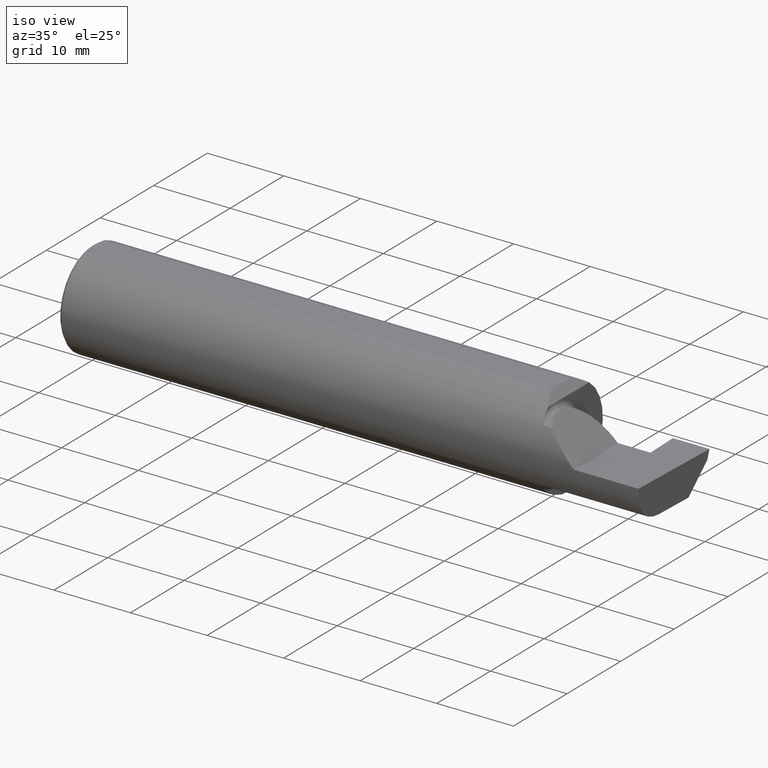
[diagram: clean part render]
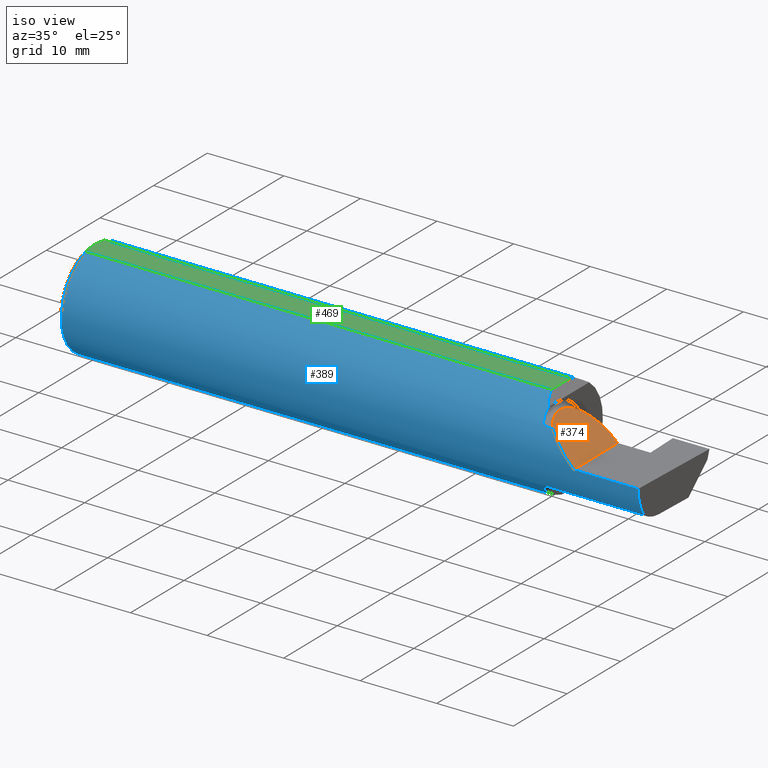
[diagram: same view with three faces highlighted in distinct colors, each labeled with its STEP entity id]
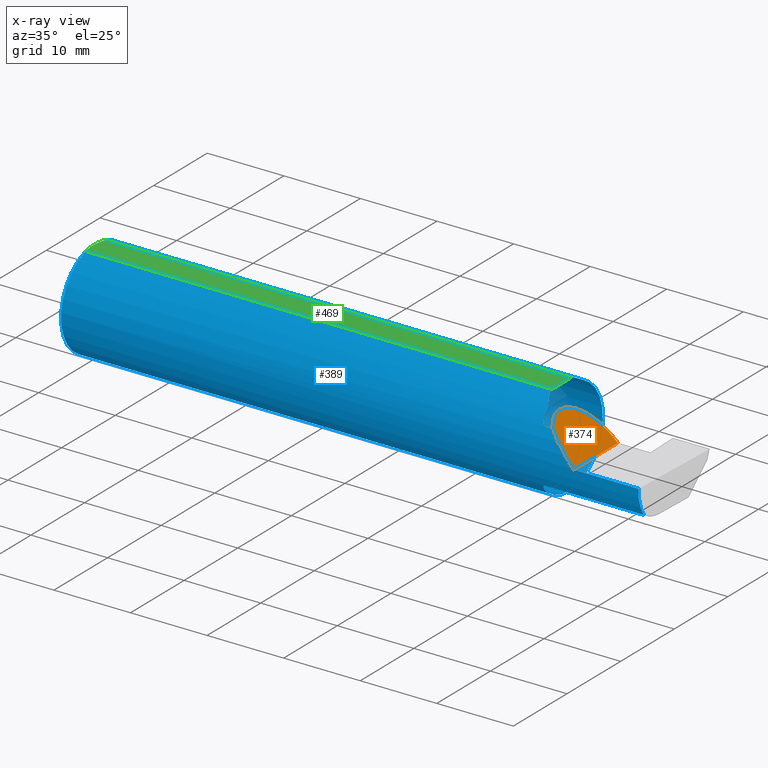
[diagram: x-ray of the same camera — body ghosted, the three highlighted faces saturated]
A machine part, iso view with three faces highlighted in distinct colors.
The next image is the same camera in x-ray (body ghosted, the three faces saturated) — at least one of them is partly hidden behind the body in this view.
Their STEP definitions:

[orange] entity #374 — the highlighted planar face has unit normal (-0.7071, 0, -0.7071).
#11 = EDGE_CURVE ( 'NONE', #62, #83, #819, .T. ) ;
#35 = AXIS2_PLACEMENT_3D ( 'NONE', #112, #661, #234 ) ;
#62 = VERTEX_POINT ( 'NONE', #579 ) ;
#83 = VERTEX_POINT ( 'NONE', #518 ) ;
#112 = CARTESIAN_POINT ( 'NONE',  ( 2.650000000000000355, -0.2500000000000000555, 4.286263797015727350E-17 ) ) ;
#160 = LINE ( 'NONE', #615, #725 ) ;
#176 = PLANE ( 'NONE',  #35 ) ;
#210 = CARTESIAN_POINT ( 'NONE',  ( 2.600434159100403875, -0.2498499999999999055, 0.04956584089959691769 ) ) ;
#216 = ORIENTED_EDGE ( 'NONE', *, *, #812, .T. ) ;
#234 = DIRECTION ( 'NONE',  ( -0.7071067811865454633, 0.000000000000000000, 0.7071067811865495711 ) ) ;
#251 =( BOUNDED_CURVE ( )  B_SPLINE_CURVE ( 3, ( #497, #626, #370, #816 ),
 .UNSPECIFIED., .F., .T. ) 
 B_SPLINE_CURVE_WITH_KNOTS ( ( 4, 4 ),
 ( 5.623622464215678463, 6.283185307179586232 ),
 .UNSPECIFIED. ) 
 CURVE ( )  GEOMETRIC_REPRESENTATION_ITEM ( )  RATIONAL_B_SPLINE_CURVE ( ( 1.000000000000000000, 0.9640754331822828371, 0.9640754331822828371, 1.000000000000000000 ) ) 
 REPRESENTATION_ITEM ( '' )  );
#271 = ORIENTED_EDGE ( 'NONE', *, *, #714, .F. ) ;
#276 = VERTEX_POINT ( 'NONE', #470 ) ;
#301 =( BOUNDED_CURVE ( )  B_SPLINE_CURVE ( 3, ( #780, #210, #327, #337 ),
 .UNSPECIFIED., .F., .F. ) 
 B_SPLINE_CURVE_WITH_KNOTS ( ( 4, 4 ),
 ( 4.712388980384689674, 5.298966915116346321 ),
 .UNSPECIFIED. ) 
 CURVE ( )  GEOMETRIC_REPRESENTATION_ITEM ( )  RATIONAL_B_SPLINE_CURVE ( ( 1.000000000000000000, 0.9715321379117538569, 0.9715321379117538569, 1.000000000000000000 ) ) 
 REPRESENTATION_ITEM ( '' )  );
#311 = EDGE_CURVE ( 'NONE', #716, #62, #251, .T. ) ;
#327 = CARTESIAN_POINT ( 'NONE',  ( 2.552984868485333347, -0.2355204011147992438, 0.09701513151466735485 ) ) ;
#337 = CARTESIAN_POINT ( 'NONE',  ( 2.511704467739034552, -0.2080850024789292485, 0.1382955322609664139 ) ) ;
#350 = EDGE_LOOP ( 'NONE', ( #544, #676, #271, #216 ) ) ;
#370 = CARTESIAN_POINT ( 'NONE',  ( 2.475000000000001421, -0.1400387324517231857, 0.1750000000000000167 ) ) ;
#374 = ADVANCED_FACE ( 'NONE', ( #557 ), #176, .F. ) ;
#459 = CARTESIAN_POINT ( 'NONE',  ( 2.650000000000000355, 0.07414999999999997982, 4.286263797015727350E-17 ) ) ;
#470 = CARTESIAN_POINT ( 'NONE',  ( 2.650000000000000355, -0.2498499999999999610, 4.286263797015727350E-17 ) ) ;
#497 = CARTESIAN_POINT ( 'NONE',  ( 2.511704467739034552, -0.2080850024789292485, 0.1382955322609664139 ) ) ;
#516 = CARTESIAN_POINT ( 'NONE',  ( 2.475000000000001421, 0.001662626584708371512, 0.1749999999999999889 ) ) ;
#518 = CARTESIAN_POINT ( 'NONE',  ( 2.650000000000000355, 0.07414999999999997982, 4.286263797015727350E-17 ) ) ;
#521 = CARTESIAN_POINT ( 'NONE',  ( 2.547487373415292744, 0.07414999999999996594, 0.1025126265847083745 ) ) ;
#529 = CARTESIAN_POINT ( 'NONE',  ( 2.511704467739034552, -0.2080850024789292485, 0.1382955322609664139 ) ) ;
#544 = ORIENTED_EDGE ( 'NONE', *, *, #11, .F. ) ;
#557 = FACE_OUTER_BOUND ( 'NONE', #350, .T. ) ;
#579 = CARTESIAN_POINT ( 'NONE',  ( 2.475000000000000977, -0.1008499999999999674, 0.1749999999999999889 ) ) ;
#615 = CARTESIAN_POINT ( 'NONE',  ( 2.650000000000000355, -0.2500000000000000555, 4.286263797015727350E-17 ) ) ;
#626 = CARTESIAN_POINT ( 'NONE',  ( 2.487690731615568307, -0.1771157075472510889, 0.1623092683844330197 ) ) ;
#650 = CARTESIAN_POINT ( 'NONE',  ( 2.475000000000000977, -0.1008499999999999674, 0.1749999999999999889 ) ) ;
#660 = DIRECTION ( 'NONE',  ( -0.000000000000000000, 1.000000000000000000, -0.000000000000000000 ) ) ;
#661 = DIRECTION ( 'NONE',  ( -0.7071067811865495711, 0.000000000000000000, -0.7071067811865454633 ) ) ;
#676 = ORIENTED_EDGE ( 'NONE', *, *, #311, .F. ) ;
#714 = EDGE_CURVE ( 'NONE', #276, #716, #301, .T. ) ;
#716 = VERTEX_POINT ( 'NONE', #529 ) ;
#725 = VECTOR ( 'NONE', #660, 39.37007874015748143 ) ;
#780 = CARTESIAN_POINT ( 'NONE',  ( 2.650000000000000355, -0.2498499999999999610, 4.286263797015727350E-17 ) ) ;
#812 = EDGE_CURVE ( 'NONE', #276, #83, #160, .T. ) ;
#816 = CARTESIAN_POINT ( 'NONE',  ( 2.475000000000000977, -0.1008499999999999674, 0.1749999999999999889 ) ) ;
#819 =( BOUNDED_CURVE ( )  B_SPLINE_CURVE ( 3, ( #650, #516, #521, #459 ),
 .UNSPECIFIED., .F., .F. ) 
 B_SPLINE_CURVE_WITH_KNOTS ( ( 4, 4 ),
 ( 0.000000000000000000, 1.570796326794896558 ),
 .UNSPECIFIED. ) 
 CURVE ( )  GEOMETRIC_REPRESENTATION_ITEM ( )  RATIONAL_B_SPLINE_CURVE ( ( 1.000000000000000000, 0.8047378541243649375, 0.8047378541243649375, 1.000000000000000000 ) ) 
 REPRESENTATION_ITEM ( '' )  );

[blue] entity #389 — the highlighted cylindrical surface (partial cylindrical patch) has radius 6.3462 mm, axis along (-1, -0, -0).
#1 = DIRECTION ( 'NONE',  ( -1.000000000000000000, -0.000000000000000000, -0.000000000000000000 ) ) ;
#3 = EDGE_CURVE ( 'NONE', #368, #42, #330, .T. ) ;
#5 = CARTESIAN_POINT ( 'NONE',  ( 2.981341028891338230, -0.2497592792593408828, -0.04986346618387151042 ) ) ;
#10 = CARTESIAN_POINT ( 'NONE',  ( 2.450000000000000178, -0.1616050818046604332, -0.1905487340154980169 ) ) ;
#13 = ORIENTED_EDGE ( 'NONE', *, *, #448, .F. ) ;
#28 = CARTESIAN_POINT ( 'NONE',  ( 2.410150000000002013, 0.06997856814768359246, 0.2398500000000000076 ) ) ;
#33 = CARTESIAN_POINT ( 'NONE',  ( 0.000000000000000000, 0.000000000000000000, 0.000000000000000000 ) ) ;
#41 = EDGE_CURVE ( 'NONE', #42, #209, #705, .T. ) ;
#42 = VERTEX_POINT ( 'NONE', #775 ) ;
#54 = CARTESIAN_POINT ( 'NONE',  ( 2.458176740666626170, -0.1972027065478075825, -0.1535263573771911971 ) ) ;
#56 = CARTESIAN_POINT ( 'NONE',  ( 2.468876997637614590, -0.2068363917296602017, 0.1401586554522226691 ) ) ;
#59 = CARTESIAN_POINT ( 'NONE',  ( 2.473318040126430528, -0.2080850024789293318, -0.1382955322609664139 ) ) ;
#60 = CARTESIAN_POINT ( 'NONE',  ( 2.450000000000000178, -0.1616050818046604332, 0.1905487340154980169 ) ) ;
#70 = CARTESIAN_POINT ( 'NONE',  ( 2.471700027347579542, -0.2077785947292770385, -0.1387580622202823077 ) ) ;
#73 = CARTESIAN_POINT ( 'NONE',  ( 2.977412177158956563, -0.2496672875357696664, -0.1999314649951114686 ) ) ;
#78 = VECTOR ( 'NONE', #678, 39.37007874015748143 ) ;
#88 = ORIENTED_EDGE ( 'NONE', *, *, #714, .T. ) ;
#95 = VERTEX_POINT ( 'NONE', #393 ) ;
#100 = ORIENTED_EDGE ( 'NONE', *, *, #543, .F. ) ;
#102 = CYLINDRICAL_SURFACE ( 'NONE', #261, 0.2498499999999999888 ) ;
#110 = B_SPLINE_CURVE_WITH_KNOTS ( 'NONE', 3,
 ( #60, #375, #122, #315, #623, #242, #180, #252, #435, #687, #56, #173, #429, #674 ),
 .UNSPECIFIED., .F., .F.,
 ( 4, 2, 2, 2, 2, 2, 4 ),
 ( 0.0003834465838148173595, 0.0008781406165086686789, 0.001372834649202519944, 0.001867528681896371209, 0.002114875698243302155, 0.002238549206416767193, 0.002362222714590232232 ),
 .UNSPECIFIED. ) ;
#116 = CIRCLE ( 'NONE', #765, 0.2498499999999999888 ) ;
#117 = CARTESIAN_POINT ( 'NONE',  ( 2.464302603425052141, -0.2041009206016216881, -0.1441313430770034543 ) ) ;
#122 = CARTESIAN_POINT ( 'NONE',  ( 2.450367168219774516, -0.1713400252854603567, 0.1819601557798505298 ) ) ;
#124 = CARTESIAN_POINT ( 'NONE',  ( 2.475000000000000089, -0.2080850024789291375, -0.1382955322609665805 ) ) ;
#126 = ORIENTED_EDGE ( 'NONE', *, *, #664, .F. ) ;
#132 = CARTESIAN_POINT ( 'NONE',  ( 0.000000000000000000, -0.06997856814768359246, 0.2398500000000000076 ) ) ;
#135 = EDGE_CURVE ( 'NONE', #209, #276, #547, .T. ) ;
#140 = DIRECTION ( 'NONE',  ( 0.000000000000000000, 0.000000000000000000, -1.000000000000000000 ) ) ;
#141 = AXIS2_PLACEMENT_3D ( 'NONE', #578, #260, #140 ) ;
#144 = CARTESIAN_POINT ( 'NONE',  ( 2.418565128400055997, 0.09882123526961361648, 0.2314348715999461070 ) ) ;
#147 = ORIENTED_EDGE ( 'NONE', *, *, #135, .T. ) ;
#164 = ORIENTED_EDGE ( 'NONE', *, *, #729, .F. ) ;
#168 = CARTESIAN_POINT ( 'NONE',  ( 2.982644377562602589, -0.2498499999999999610, 1.813681607540488003E-17 ) ) ;
#172 = DIRECTION ( 'NONE',  ( -1.000000000000000000, -0.000000000000000000, -0.000000000000000000 ) ) ;
#173 = CARTESIAN_POINT ( 'NONE',  ( 2.471718393013768278, -0.2077830475237243124, 0.1387513848711933728 ) ) ;
#174 = VERTEX_POINT ( 'NONE', #736 ) ;
#180 = CARTESIAN_POINT ( 'NONE',  ( 2.458182335268384922, -0.1972192205116133357, 0.1535061413537207597 ) ) ;
#185 = CARTESIAN_POINT ( 'NONE',  ( 2.468863362722769406, -0.2068301641248772305, -0.1401678546132358316 ) ) ;
#189 = CARTESIAN_POINT ( 'NONE',  ( 2.450000000000000178, -0.1616050818046604332, -0.1905487340154980169 ) ) ;
#191 = VERTEX_POINT ( 'NONE', #298 ) ;
#198 = VECTOR ( 'NONE', #771, 39.37007874015748143 ) ;
#209 = VERTEX_POINT ( 'NONE', #168 ) ;
#210 = CARTESIAN_POINT ( 'NONE',  ( 2.600434159100403875, -0.2498499999999999055, 0.04956584089959691769 ) ) ;
#220 = DIRECTION ( 'NONE',  ( -1.000000000000000000, -0.000000000000000000, -0.000000000000000000 ) ) ;
#223 = ORIENTED_EDGE ( 'NONE', *, *, #592, .F. ) ;
#240 = ORIENTED_EDGE ( 'NONE', *, *, #41, .T. ) ;
#242 = CARTESIAN_POINT ( 'NONE',  ( 2.456159563508733878, -0.1933019864360850659, 0.1584298865564828795 ) ) ;
#243 = ORIENTED_EDGE ( 'NONE', *, *, #487, .F. ) ;
#244 = CARTESIAN_POINT ( 'NONE',  ( 0.01499999999999999944, 0.000000000000000000, 0.000000000000000000 ) ) ;
#252 = CARTESIAN_POINT ( 'NONE',  ( 2.462616400345756240, -0.2024684335577105199, 0.1464246884265635318 ) ) ;
#255 = DIRECTION ( 'NONE',  ( 0.000000000000000000, 0.000000000000000000, 1.000000000000000000 ) ) ;
#260 = DIRECTION ( 'NONE',  ( 1.000000000000000000, 0.000000000000000000, 0.000000000000000000 ) ) ;
#261 = AXIS2_PLACEMENT_3D ( 'NONE', #33, #356, #665 ) ;
#267 = CARTESIAN_POINT ( 'NONE',  ( 2.980602402804240381, -0.2354324170447332498, -0.09714751587400637101 ) ) ;
#269 =( BOUNDED_CURVE ( )  B_SPLINE_CURVE ( 3, ( #594, #144, #461, #646 ),
 .UNSPECIFIED., .F., .F. ) 
 B_SPLINE_CURVE_WITH_KNOTS ( ( 4, 4 ),
 ( 0.2838798623474212968, 0.6427002007837403497 ),
 .UNSPECIFIED. ) 
 CURVE ( )  GEOMETRIC_REPRESENTATION_ITEM ( )  RATIONAL_B_SPLINE_CURVE ( ( 1.000000000000000000, 0.9892994125303244957, 0.9892994125303244957, 1.000000000000000000 ) ) 
 REPRESENTATION_ITEM ( '' )  );
#270 = ORIENTED_EDGE ( 'NONE', *, *, #404, .F. ) ;
#273 = VECTOR ( 'NONE', #781, 39.37007874015748854 ) ;
#276 = VERTEX_POINT ( 'NONE', #470 ) ;
#285 = CARTESIAN_POINT ( 'NONE',  ( 2.410150000000002013, -0.06997856814768374512, 0.2398500000000000076 ) ) ;
#298 = CARTESIAN_POINT ( 'NONE',  ( 2.450000000000000178, -0.1497498664440119476, 0.2000000000000015099 ) ) ;
#301 =( BOUNDED_CURVE ( )  B_SPLINE_CURVE ( 3, ( #780, #210, #327, #337 ),
 .UNSPECIFIED., .F., .F. ) 
 B_SPLINE_CURVE_WITH_KNOTS ( ( 4, 4 ),
 ( 4.712388980384689674, 5.298966915116346321 ),
 .UNSPECIFIED. ) 
 CURVE ( )  GEOMETRIC_REPRESENTATION_ITEM ( )  RATIONAL_B_SPLINE_CURVE ( ( 1.000000000000000000, 0.9715321379117538569, 0.9715321379117538569, 1.000000000000000000 ) ) 
 REPRESENTATION_ITEM ( '' )  );
#302 = CARTESIAN_POINT ( 'NONE',  ( 2.450000000000000178, 0.000000000000000000, 0.000000000000000000 ) ) ;
#303 = CARTESIAN_POINT ( 'NONE',  ( 2.980479240051444378, -0.2080850024789291652, -0.1382955322609665250 ) ) ;
#310 = CARTESIAN_POINT ( 'NONE',  ( 2.451385488563270432, -0.1808287530430327805, -0.1728790649396284851 ) ) ;
#314 = CARTESIAN_POINT ( 'NONE',  ( 2.431992138630818978, -0.1256992788918499804, 0.2180078613691826817 ) ) ;
#315 = CARTESIAN_POINT ( 'NONE',  ( 2.451849548162864600, -0.1805300287242675161, 0.1728462070311779508 ) ) ;
#317 = VERTEX_POINT ( 'NONE', #746 ) ;
#319 = CARTESIAN_POINT ( 'NONE',  ( 2.450000000000000178, -0.1716188362992554783, -0.1820560320165480195 ) ) ;
#321 = LINE ( 'NONE', #576, #78 ) ;
#326 = VECTOR ( 'NONE', #220, 39.37007874015748143 ) ;
#327 = CARTESIAN_POINT ( 'NONE',  ( 2.552984868485333347, -0.2355204011147992438, 0.09701513151466735485 ) ) ;
#328 = CIRCLE ( 'NONE', #141, 0.2498499999999999888 ) ;
#330 =( BOUNDED_CURVE ( )  B_SPLINE_CURVE ( 3, ( #770, #267, #5, #331 ),
 .UNSPECIFIED., .F., .F. ) 
 B_SPLINE_CURVE_WITH_KNOTS ( ( 4, 4 ),
 ( 0.05713034791898994463, 0.6418805321923577445 ),
 .UNSPECIFIED. ) 
 CURVE ( )  GEOMETRIC_REPRESENTATION_ITEM ( )  RATIONAL_B_SPLINE_CURVE ( ( 1.000000000000000000, 0.9717080070095436284, 0.9717080070095436284, 1.000000000000000000 ) ) 
 REPRESENTATION_ITEM ( '' )  );
#331 = CARTESIAN_POINT ( 'NONE',  ( 2.982632426700502215, -0.2498495826666993769, -0.0004566631977430677986 ) ) ;
#332 = ORIENTED_EDGE ( 'NONE', *, *, #694, .T. ) ;
#337 = CARTESIAN_POINT ( 'NONE',  ( 2.511704467739034552, -0.2080850024789292485, 0.1382955322609664139 ) ) ;
#342 = CARTESIAN_POINT ( 'NONE',  ( 2.450000000000000178, -0.1616050818046604332, 0.1905487340154980169 ) ) ;
#352 = EDGE_CURVE ( 'NONE', #659, #174, #110, .T. ) ;
#356 = DIRECTION ( 'NONE',  ( -1.000000000000000000, -0.000000000000000000, -0.000000000000000000 ) ) ;
#362 = FACE_OUTER_BOUND ( 'NONE', #706, .T. ) ;
#365 = ORIENTED_EDGE ( 'NONE', *, *, #549, .T. ) ;
#368 = VERTEX_POINT ( 'NONE', #303 ) ;
#373 = CIRCLE ( 'NONE', #513, 0.2498499999999999888 ) ;
#375 = CARTESIAN_POINT ( 'NONE',  ( 2.450000000000001066, -0.1665641037263010105, 0.1863429692936361126 ) ) ;
#377 = CARTESIAN_POINT ( 'NONE',  ( 0.01499999999999999944, -0.06997856814768359246, 0.2398500000000000076 ) ) ;
#380 = VERTEX_POINT ( 'NONE', #550 ) ;
#381 = CARTESIAN_POINT ( 'NONE',  ( 2.467611663768900510, -0.2061921161193833452, -0.1411075319999372246 ) ) ;
#389 = ADVANCED_FACE ( 'NONE', ( #362 ), #102, .T. ) ;
#393 = CARTESIAN_POINT ( 'NONE',  ( 0.01499999999999998036, 0.06997856814768359246, 0.2398500000000000076 ) ) ;
#404 = EDGE_CURVE ( 'NONE', #368, #438, #599, .T. ) ;
#428 = DIRECTION ( 'NONE',  ( 0.000000000000000000, 0.000000000000000000, 1.000000000000000000 ) ) ;
#429 = CARTESIAN_POINT ( 'NONE',  ( 2.473329956043142985, -0.2080850024798593101, 0.1382955322595671721 ) ) ;
#435 = CARTESIAN_POINT ( 'NONE',  ( 2.464343523383979218, -0.2041337200786086103, 0.1440846171672507392 ) ) ;
#438 = VERTEX_POINT ( 'NONE', #735 ) ;
#448 = EDGE_CURVE ( 'NONE', #95, #380, #373, .T. ) ;
#461 = CARTESIAN_POINT ( 'NONE',  ( 2.431992138630818978, 0.1256992788918499249, 0.2180078613691827649 ) ) ;
#470 = CARTESIAN_POINT ( 'NONE',  ( 2.650000000000000355, -0.2498499999999999610, 4.286263797015727350E-17 ) ) ;
#487 = EDGE_CURVE ( 'NONE', #784, #317, #116, .T. ) ;
#499 = CARTESIAN_POINT ( 'NONE',  ( 2.450000000000000178, -0.1497498664440119476, 0.2000000000000015099 ) ) ;
#510 = CARTESIAN_POINT ( 'NONE',  ( 2.462579853086619419, -0.2024300470081737413, -0.1464774911482682185 ) ) ;
#512 = VERTEX_POINT ( 'NONE', #28 ) ;
#513 = AXIS2_PLACEMENT_3D ( 'NONE', #657, #172, #428 ) ;
#525 = DIRECTION ( 'NONE',  ( 1.000000000000000000, 0.000000000000000000, 0.000000000000000000 ) ) ;
#529 = CARTESIAN_POINT ( 'NONE',  ( 2.511704467739034552, -0.2080850024789292485, 0.1382955322609664139 ) ) ;
#543 = EDGE_CURVE ( 'NONE', #438, #784, #713, .T. ) ;
#547 = LINE ( 'NONE', #671, #326 ) ;
#548 = VERTEX_POINT ( 'NONE', #377 ) ;
#549 = EDGE_CURVE ( 'NONE', #191, #790, #562, .T. ) ;
#550 = CARTESIAN_POINT ( 'NONE',  ( 0.01499999999999999944, 0.000000000000000000, -0.2498499999999999888 ) ) ;
#554 = DIRECTION ( 'NONE',  ( 1.000000000000000000, 0.000000000000000000, 0.000000000000000000 ) ) ;
#562 =( BOUNDED_CURVE ( )  B_SPLINE_CURVE ( 3, ( #499, #314, #574, #569 ),
 .UNSPECIFIED., .F., .T. ) 
 B_SPLINE_CURVE_WITH_KNOTS ( ( 4, 4 ),
 ( 5.640485106395845882, 5.999305444832164547 ),
 .UNSPECIFIED. ) 
 CURVE ( )  GEOMETRIC_REPRESENTATION_ITEM ( )  RATIONAL_B_SPLINE_CURVE ( ( 1.000000000000000000, 0.9892994125303244957, 0.9892994125303244957, 1.000000000000000000 ) ) 
 REPRESENTATION_ITEM ( '' )  );
#569 = CARTESIAN_POINT ( 'NONE',  ( 2.410150000000002013, -0.06997856814768374512, 0.2398500000000000076 ) ) ;
#571 = AXIS2_PLACEMENT_3D ( 'NONE', #244, #1, #255 ) ;
#574 = CARTESIAN_POINT ( 'NONE',  ( 2.418565128400055997, -0.09882123526961372750, 0.2314348715999460515 ) ) ;
#576 = CARTESIAN_POINT ( 'NONE',  ( 2.643500000000000405, -0.2080850024789291652, 0.1382955322609665250 ) ) ;
#578 = CARTESIAN_POINT ( 'NONE',  ( 2.450000000000000178, 0.000000000000000000, 0.000000000000000000 ) ) ;
#589 = LINE ( 'NONE', #132, #822 ) ;
#592 = EDGE_CURVE ( 'NONE', #380, #548, #792, .T. ) ;
#594 = CARTESIAN_POINT ( 'NONE',  ( 2.410150000000002013, 0.06997856814768359246, 0.2398500000000000076 ) ) ;
#599 = LINE ( 'NONE', #731, #686 ) ;
#609 = EDGE_CURVE ( 'NONE', #174, #716, #321, .T. ) ;
#623 = CARTESIAN_POINT ( 'NONE',  ( 2.452968662030529323, -0.1849684355203380370, 0.1680843977756266150 ) ) ;
#624 = ORIENTED_EDGE ( 'NONE', *, *, #609, .F. ) ;
#625 = CARTESIAN_POINT ( 'NONE',  ( 2.456147634408388125, -0.1932733126899462417, -0.1584637047788195474 ) ) ;
#641 = ORIENTED_EDGE ( 'NONE', *, *, #352, .F. ) ;
#646 = CARTESIAN_POINT ( 'NONE',  ( 2.450000000000000178, 0.1497498664440119198, 0.2000000000000015099 ) ) ;
#652 = CARTESIAN_POINT ( 'NONE',  ( 0.000000000000000000, 0.06997856814768359246, 0.2398500000000000076 ) ) ;
#657 = CARTESIAN_POINT ( 'NONE',  ( 0.01499999999999999944, 0.000000000000000000, 0.000000000000000000 ) ) ;
#659 = VERTEX_POINT ( 'NONE', #342 ) ;
#664 = EDGE_CURVE ( 'NONE', #548, #790, #589, .T. ) ;
#665 = DIRECTION ( 'NONE',  ( 0.000000000000000000, 0.000000000000000000, 1.000000000000000000 ) ) ;
#671 = CARTESIAN_POINT ( 'NONE',  ( 4.499279347985559139E-32, -0.2498499999999999610, 3.673940397442053459E-16 ) ) ;
#674 = CARTESIAN_POINT ( 'NONE',  ( 2.475000000000000089, -0.2080850024789292485, 0.1382955322609664972 ) ) ;
#678 = DIRECTION ( 'NONE',  ( 1.000000000000000000, 0.000000000000000000, 0.000000000000000000 ) ) ;
#686 = VECTOR ( 'NONE', #741, 39.37007874015748143 ) ;
#687 = CARTESIAN_POINT ( 'NONE',  ( 2.467647060162629025, -0.2062109266231184901, 0.1410799729252286139 ) ) ;
#694 = EDGE_CURVE ( 'NONE', #512, #317, #269, .T. ) ;
#705 = LINE ( 'NONE', #73, #273 ) ;
#706 = EDGE_LOOP ( 'NONE', ( #240, #147, #88, #624, #641, #795, #365, #126, #223, #13, #164, #332, #243, #100, #270, #750 ) ) ;
#713 = B_SPLINE_CURVE_WITH_KNOTS ( 'NONE', 3,
 ( #124, #59, #70, #185, #381, #117, #510, #54, #625, #310, #319, #189 ),
 .UNSPECIFIED., .F., .F.,
 ( 4, 2, 2, 2, 2, 4 ),
 ( 1.964491429112497443E-07, 0.0001260981470478309680, 0.0002519998449527506546, 0.0005038032407626181087, 0.001007410032382352692, 0.002014623615621821857 ),
 .UNSPECIFIED. ) ;
#714 = EDGE_CURVE ( 'NONE', #276, #716, #301, .T. ) ;
#716 = VERTEX_POINT ( 'NONE', #529 ) ;
#729 = EDGE_CURVE ( 'NONE', #512, #95, #774, .T. ) ;
#731 = CARTESIAN_POINT ( 'NONE',  ( 2.643500000000000405, -0.2080850024789291652, -0.1382955322609665250 ) ) ;
#735 = CARTESIAN_POINT ( 'NONE',  ( 2.475000000000000089, -0.2080850024789291375, -0.1382955322609665805 ) ) ;
#736 = CARTESIAN_POINT ( 'NONE',  ( 2.475000000000000089, -0.2080850024789292485, 0.1382955322609664972 ) ) ;
#741 = DIRECTION ( 'NONE',  ( -1.000000000000000000, -0.000000000000000000, -0.000000000000000000 ) ) ;
#746 = CARTESIAN_POINT ( 'NONE',  ( 2.450000000000000178, 0.1497498664440119198, 0.2000000000000015099 ) ) ;
#750 = ORIENTED_EDGE ( 'NONE', *, *, #3, .T. ) ;
#765 = AXIS2_PLACEMENT_3D ( 'NONE', #302, #554, #806 ) ;
#770 = CARTESIAN_POINT ( 'NONE',  ( 2.980479240051444378, -0.2080850024789291652, -0.1382955322609665250 ) ) ;
#771 = DIRECTION ( 'NONE',  ( -1.000000000000000000, -0.000000000000000000, -0.000000000000000000 ) ) ;
#773 = EDGE_CURVE ( 'NONE', #191, #659, #328, .T. ) ;
#774 = LINE ( 'NONE', #652, #198 ) ;
#775 = CARTESIAN_POINT ( 'NONE',  ( 2.982632426700502215, -0.2498495826666993769, -0.0004566631977430677986 ) ) ;
#780 = CARTESIAN_POINT ( 'NONE',  ( 2.650000000000000355, -0.2498499999999999610, 4.286263797015727350E-17 ) ) ;
#781 = DIRECTION ( 'NONE',  ( 0.02616100201822768243, -0.0009135623211515306406, 0.9996573249755575929 ) ) ;
#784 = VERTEX_POINT ( 'NONE', #10 ) ;
#790 = VERTEX_POINT ( 'NONE', #285 ) ;
#792 = CIRCLE ( 'NONE', #571, 0.2498499999999999888 ) ;
#795 = ORIENTED_EDGE ( 'NONE', *, *, #773, .F. ) ;
#806 = DIRECTION ( 'NONE',  ( 0.000000000000000000, 0.000000000000000000, -1.000000000000000000 ) ) ;
#822 = VECTOR ( 'NONE', #525, 39.37007874015748143 ) ;

[green] entity #469 — the highlighted planar face has unit normal (0, -0, 1).
#28 = CARTESIAN_POINT ( 'NONE',  ( 2.410150000000002013, 0.06997856814768359246, 0.2398500000000000076 ) ) ;
#31 = B_SPLINE_CURVE_WITH_KNOTS ( 'NONE', 3,
 ( #425, #476, #104, #363, #613, #788 ),
 .UNSPECIFIED., .F., .F.,
 ( 4, 2, 4 ),
 ( 0.007845223120669340966, 0.008734561288375079086, 0.009623899456080817205 ),
 .UNSPECIFIED. ) ;
#61 = B_SPLINE_CURVE_WITH_KNOTS ( 'NONE', 3,
 ( #241, #496, #748, #179, #272, #81 ),
 .UNSPECIFIED., .F., .F.,
 ( 4, 2, 4 ),
 ( 0.006064768674679246394, 0.006954995897674293680, 0.007845223120669340966 ),
 .UNSPECIFIED. ) ;
#81 = CARTESIAN_POINT ( 'NONE',  ( 0.004999999999999471013, 5.665694022114171174E-17, 0.2398500000000000076 ) ) ;
#95 = VERTEX_POINT ( 'NONE', #393 ) ;
#104 = CARTESIAN_POINT ( 'NONE',  ( 0.005880636388018714231, -0.02358947477502553597, 0.2398500000000000354 ) ) ;
#132 = CARTESIAN_POINT ( 'NONE',  ( 0.000000000000000000, -0.06997856814768359246, 0.2398500000000000076 ) ) ;
#179 = CARTESIAN_POINT ( 'NONE',  ( 0.005899890343961325216, 0.02378560009989248020, 0.2398500000000000076 ) ) ;
#198 = VECTOR ( 'NONE', #771, 39.37007874015748143 ) ;
#211 = EDGE_CURVE ( 'NONE', #523, #548, #31, .T. ) ;
#241 = CARTESIAN_POINT ( 'NONE',  ( 0.01499999999999998036, 0.06997856814768359246, 0.2398500000000000076 ) ) ;
#272 = CARTESIAN_POINT ( 'NONE',  ( 0.004999999999999748569, 0.01185123536186986730, 0.2398500000000000354 ) ) ;
#279 = ORIENTED_EDGE ( 'NONE', *, *, #211, .T. ) ;
#285 = CARTESIAN_POINT ( 'NONE',  ( 2.410150000000002013, -0.06997856814768374512, 0.2398500000000000076 ) ) ;
#297 = PLANE ( 'NONE',  #740 ) ;
#353 = FACE_OUTER_BOUND ( 'NONE', #506, .T. ) ;
#363 = CARTESIAN_POINT ( 'NONE',  ( 0.009274236576542584445, -0.04692405468904851940, 0.2398500000000000076 ) ) ;
#366 = DIRECTION ( 'NONE',  ( 0.000000000000000000, -0.000000000000000000, 1.000000000000000000 ) ) ;
#377 = CARTESIAN_POINT ( 'NONE',  ( 0.01499999999999999944, -0.06997856814768359246, 0.2398500000000000076 ) ) ;
#393 = CARTESIAN_POINT ( 'NONE',  ( 0.01499999999999998036, 0.06997856814768359246, 0.2398500000000000076 ) ) ;
#425 = CARTESIAN_POINT ( 'NONE',  ( 0.004999999999999471013, 5.665694022114171174E-17, 0.2398500000000000076 ) ) ;
#464 = ORIENTED_EDGE ( 'NONE', *, *, #729, .T. ) ;
#469 = ADVANCED_FACE ( 'NONE', ( #353 ), #297, .T. ) ;
#475 = VECTOR ( 'NONE', #762, 39.37007874015748143 ) ;
#476 = CARTESIAN_POINT ( 'NONE',  ( 0.004999999999999737293, -0.01183939972798750233, 0.2398500000000000631 ) ) ;
#479 = CARTESIAN_POINT ( 'NONE',  ( 3.000000000000000444, -0.2498499999999999888, 0.2398500000000000076 ) ) ;
#495 = ORIENTED_EDGE ( 'NONE', *, *, #664, .T. ) ;
#496 = CARTESIAN_POINT ( 'NONE',  ( 0.01181966702888962925, 0.05862357455657477012, 0.2398500000000000631 ) ) ;
#503 = LINE ( 'NONE', #693, #475 ) ;
#506 = EDGE_LOOP ( 'NONE', ( #691, #464, #711, #279, #495 ) ) ;
#512 = VERTEX_POINT ( 'NONE', #28 ) ;
#523 = VERTEX_POINT ( 'NONE', #629 ) ;
#525 = DIRECTION ( 'NONE',  ( 1.000000000000000000, 0.000000000000000000, 0.000000000000000000 ) ) ;
#548 = VERTEX_POINT ( 'NONE', #377 ) ;
#587 = EDGE_CURVE ( 'NONE', #512, #790, #503, .T. ) ;
#589 = LINE ( 'NONE', #132, #822 ) ;
#613 = CARTESIAN_POINT ( 'NONE',  ( 0.01180609504125294286, -0.05857511741890332468, 0.2398500000000000354 ) ) ;
#629 = CARTESIAN_POINT ( 'NONE',  ( 0.004999999999999471013, 5.665694022114171174E-17, 0.2398500000000000076 ) ) ;
#634 = EDGE_CURVE ( 'NONE', #95, #523, #61, .T. ) ;
#652 = CARTESIAN_POINT ( 'NONE',  ( 0.000000000000000000, 0.06997856814768359246, 0.2398500000000000076 ) ) ;
#664 = EDGE_CURVE ( 'NONE', #548, #790, #589, .T. ) ;
#691 = ORIENTED_EDGE ( 'NONE', *, *, #587, .F. ) ;
#693 = CARTESIAN_POINT ( 'NONE',  ( 2.410150000000002013, -0.2498499999999999888, 0.2398500000000000076 ) ) ;
#711 = ORIENTED_EDGE ( 'NONE', *, *, #634, .T. ) ;
#729 = EDGE_CURVE ( 'NONE', #512, #95, #774, .T. ) ;
#740 = AXIS2_PLACEMENT_3D ( 'NONE', #479, #366, #797 ) ;
#748 = CARTESIAN_POINT ( 'NONE',  ( 0.009312860630924749139, 0.04712480857212033442, 0.2398500000000000354 ) ) ;
#762 = DIRECTION ( 'NONE',  ( 0.000000000000000000, -1.000000000000000000, 0.000000000000000000 ) ) ;
#771 = DIRECTION ( 'NONE',  ( -1.000000000000000000, -0.000000000000000000, -0.000000000000000000 ) ) ;
#774 = LINE ( 'NONE', #652, #198 ) ;
#788 = CARTESIAN_POINT ( 'NONE',  ( 0.01499999999999999944, -0.06997856814768359246, 0.2398500000000000076 ) ) ;
#790 = VERTEX_POINT ( 'NONE', #285 ) ;
#797 = DIRECTION ( 'NONE',  ( 1.000000000000000000, 0.000000000000000000, -0.000000000000000000 ) ) ;
#822 = VECTOR ( 'NONE', #525, 39.37007874015748143 ) ;